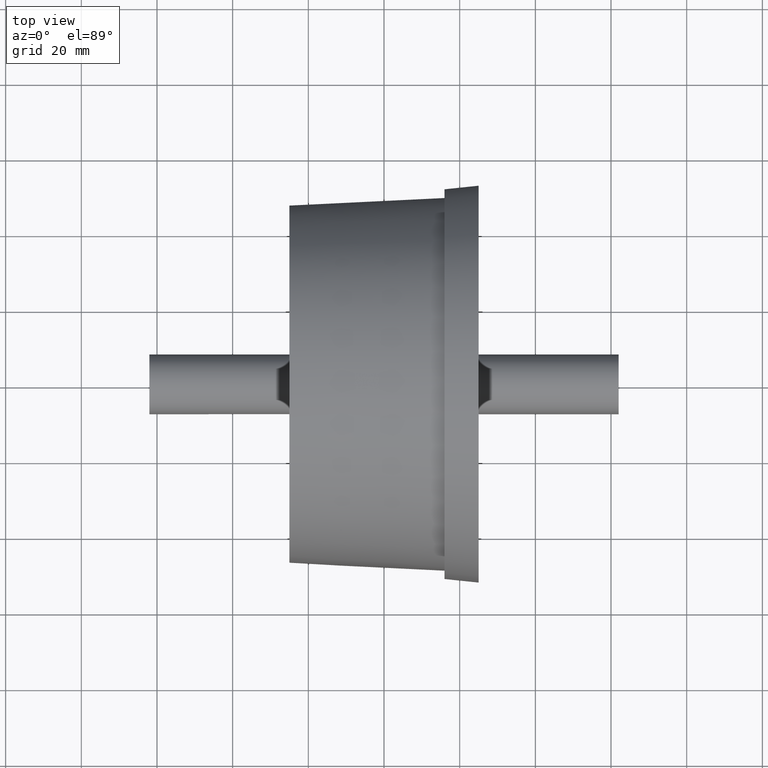
[diagram: clean part render]
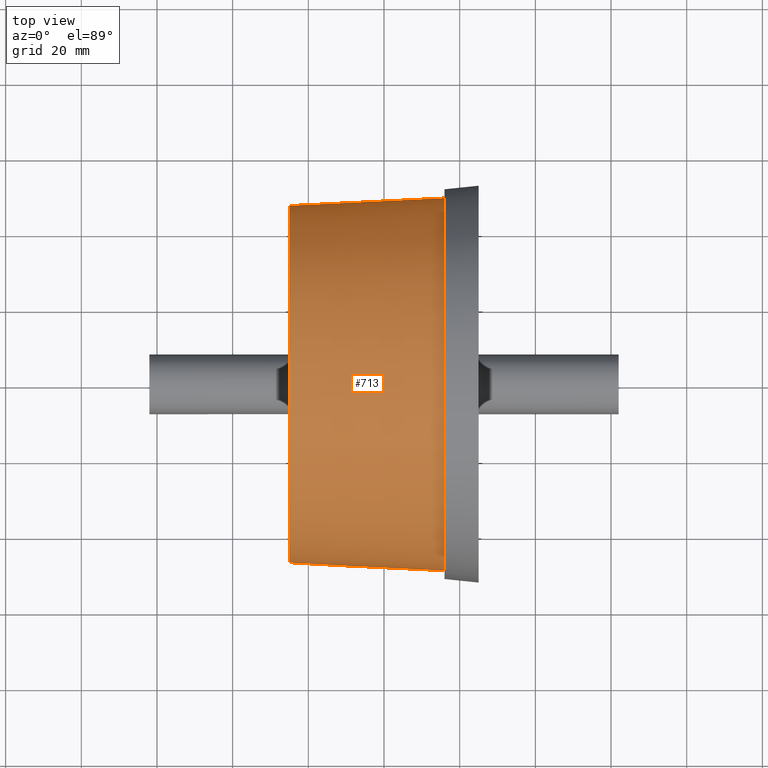
[diagram: same view with one face highlighted and labeled with its STEP entity id]
A machine part, top view. The second image highlights one B-rep face of the part: STEP entity #713.
In plain terms, the highlighted conical surface has half-angle 2.793 deg.
Its self-contained STEP definition (entity closure, byte-faithful):
#15=CONICAL_SURFACE('',#840,48.25,2.79270236571328);
#107=FACE_BOUND('',#293,.T.);
#170=FACE_OUTER_BOUND('',#292,.T.);
#292=EDGE_LOOP('',(#612));
#293=EDGE_LOOP('',(#613));
#365=CIRCLE('',#833,47.25);
#366=CIRCLE('',#841,49.25);
#429=VERTEX_POINT('',#1282);
#430=VERTEX_POINT('',#1291);
#493=EDGE_CURVE('',#429,#429,#365,.T.);
#494=EDGE_CURVE('',#430,#430,#366,.T.);
#612=ORIENTED_EDGE('',*,*,#493,.T.);
#613=ORIENTED_EDGE('',*,*,#494,.F.);
#713=ADVANCED_FACE('',(#170,#107),#15,.T.);
#833=AXIS2_PLACEMENT_3D('',#1283,#1074,#1075);
#840=AXIS2_PLACEMENT_3D('',#1290,#1088,#1089);
#841=AXIS2_PLACEMENT_3D('',#1292,#1090,#1091);
#1074=DIRECTION('center_axis',(1.,2.40506373542991E-32,0.));
#1075=DIRECTION('ref_axis',(0.,0.,-1.));
#1088=DIRECTION('center_axis',(1.,2.40506373542991E-32,0.));
#1089=DIRECTION('ref_axis',(0.,1.,0.));
#1090=DIRECTION('center_axis',(1.,2.40506373542991E-32,0.));
#1091=DIRECTION('ref_axis',(0.,1.,0.));
#1282=CARTESIAN_POINT('',(-25.,47.25,0.));
#1283=CARTESIAN_POINT('Origin',(-25.,-2.18952885050753E-46,0.));
#1290=CARTESIAN_POINT('Origin',(-4.50000000000001,4.93038065763132E-31,
0.));
#1291=CARTESIAN_POINT('',(16.,49.25,0.));
#1292=CARTESIAN_POINT('Origin',(16.,9.86076131526265E-31,0.));